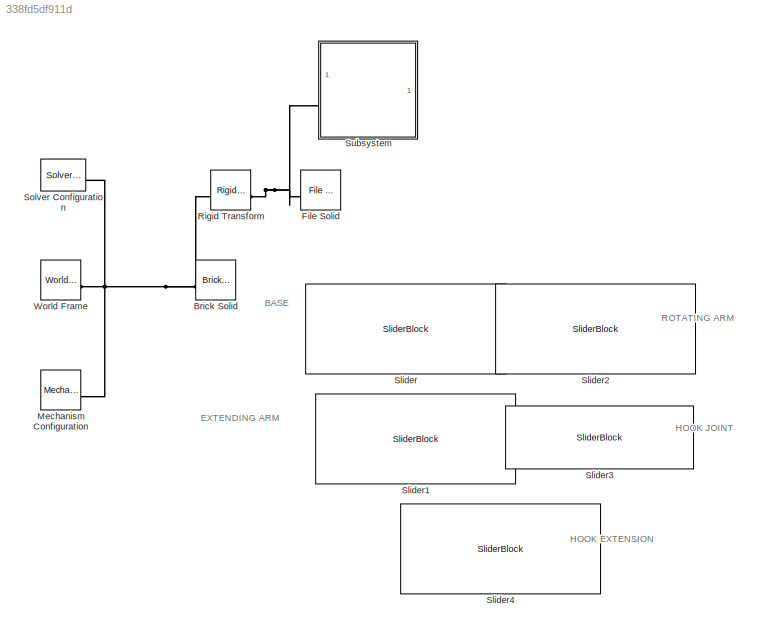
MODEL slx_338fd5df911d
KIND model
CONFIG AbsTol = auto
CONFIG EnableMultiTasking = off
CONFIG FixedStep = auto
CONFIG MaxStep = auto
CONFIG MinStep = auto
CONFIG RelTol = 1e-3
CONFIG SampleTimeConstraint = Unconstrained
CONFIG SolverName = VariableStepAuto
CONFIG StartTime = 0.0
CONFIG StopTime = inf
BLOCK [Reference] Brick Solid  REF=sm_lib/Body Elements/Brick Solid
  SourceBlock = sm_lib/Body Elements/Brick Solid
  SourceType = Brick Solid
BLOCK [Reference] File Solid  REF=sm_lib/Body Elements/File Solid
  SourceBlock = sm_lib/Body Elements/File Solid
  SourceType = File Solid
BLOCK [Reference] Mechanism Configuration  REF=sm_lib/Utilities/Mechanism
Configuration
  SourceBlock = sm_lib/Utilities/Mechanism\nConfiguration
  SourceType = Mechanism\nConfiguration
BLOCK [Reference] Rigid Transform  REF=sm_lib/Frames and
Transforms/Rigid
Transform
  SourceBlock = sm_lib/Frames and\nTransforms/Rigid\nTransform
  SourceType = Rigid\nTransform
BLOCK [SliderBlock] Slider
  ScaleMax = 3
  ScaleMin = -3
BLOCK [SliderBlock] Slider1
  ScaleMax = 0.21
BLOCK [SliderBlock] Slider2
  ScaleMax = 0.6
  ScaleMin = -0.6
BLOCK [SliderBlock] Slider3
  ScaleMax = 2.3
  ScaleMin = -0.65
BLOCK [SliderBlock] Slider4
  ScaleMax = 0.045
BLOCK [Reference] Solver Configuration  REF=nesl_utility/Solver
Configuration
  SourceBlock = nesl_utility/Solver\nConfiguration
  SourceType = Solver\nConfiguration
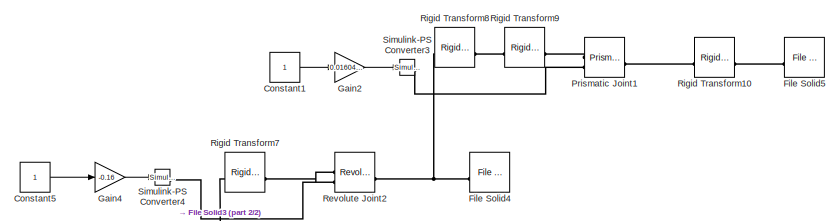
[diagram: Subsystem - part 1/2, top right region]
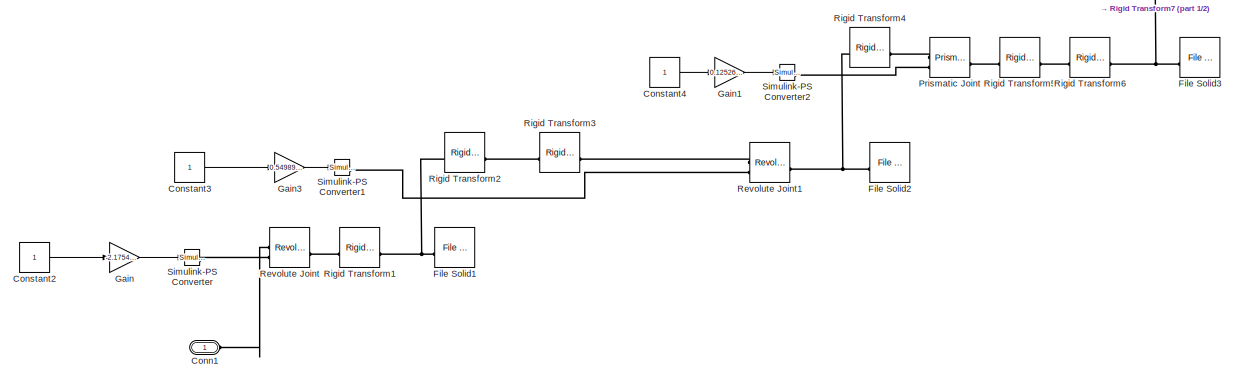
[diagram: Subsystem - part 2/2, bottom center region]
BLOCK [SubSystem] Subsystem
BLOCK [PMIOPort] Subsystem/Conn1
  Side = Left
BLOCK [Constant] Subsystem/Constant1
BLOCK [Constant] Subsystem/Constant2
BLOCK [Constant] Subsystem/Constant3
BLOCK [Constant] Subsystem/Constant4
BLOCK [Constant] Subsystem/Constant5
BLOCK [Reference] Subsystem/File Solid1  REF=sm_lib/Body Elements/File Solid
  SourceBlock = sm_lib/Body Elements/File Solid
  SourceType = File Solid
BLOCK [Reference] Subsystem/File Solid2  REF=sm_lib/Body Elements/File Solid
  SourceBlock = sm_lib/Body Elements/File Solid
  SourceType = File Solid
BLOCK [Reference] Subsystem/File Solid3  REF=sm_lib/Body Elements/File Solid
  SourceBlock = sm_lib/Body Elements/File Solid
  SourceType = File Solid
BLOCK [Reference] Subsystem/File Solid4  REF=sm_lib/Body Elements/File Solid
  SourceBlock = sm_lib/Body Elements/File Solid
  SourceType = File Solid
BLOCK [Reference] Subsystem/File Solid5  REF=sm_lib/Body Elements/File Solid
  SourceBlock = sm_lib/Body Elements/File Solid
  SourceType = File Solid
BLOCK [Gain] Subsystem/Gain
  Gain = -2.175438596491228
BLOCK [Gain] Subsystem/Gain1
  Gain = 0.1252631578947368
BLOCK [Gain] Subsystem/Gain2
  Gain = 0.01604037942737795
BLOCK [Gain] Subsystem/Gain3
  Gain = 0.5498945592576973
BLOCK [Gain] Subsystem/Gain4
  Gain = -0.16
BLOCK [Reference] Subsystem/Prismatic Joint  REF=sm_lib/Joints/Prismatic
Joint
  SourceBlock = sm_lib/Joints/Prismatic\nJoint
  SourceType = Prismatic\nJoint
BLOCK [Reference] Subsystem/Prismatic Joint1  REF=sm_lib/Joints/Prismatic
Joint
  SourceBlock = sm_lib/Joints/Prismatic\nJoint
  SourceType = Prismatic\nJoint
BLOCK [Reference] Subsystem/Revolute Joint  REF=sm_lib/Joints/Revolute Joint
  SourceBlock = sm_lib/Joints/Revolute Joint
  SourceType = Revolute Joint
BLOCK [Reference] Subsystem/Revolute Joint1  REF=sm_lib/Joints/Revolute Joint
  SourceBlock = sm_lib/Joints/Revolute Joint
  SourceType = Revolute Joint
BLOCK [Reference] Subsystem/Revolute Joint2  REF=sm_lib/Joints/Revolute Joint
  SourceBlock = sm_lib/Joints/Revolute Joint
  SourceType = Revolute Joint
BLOCK [Reference] Subsystem/Rigid Transform1  REF=sm_lib/Frames and
Transforms/Rigid
Transform
  SourceBlock = sm_lib/Frames and\nTransforms/Rigid\nTransform
  SourceType = Rigid\nTransform
BLOCK [Reference] Subsystem/Rigid Transform10  REF=sm_lib/Frames and
Transforms/Rigid
Transform
  SourceBlock = sm_lib/Frames and\nTransforms/Rigid\nTransform
  SourceType = Rigid\nTransform
BLOCK [Reference] Subsystem/Rigid Transform2  REF=sm_lib/Frames and
Transforms/Rigid
Transform
  SourceBlock = sm_lib/Frames and\nTransforms/Rigid\nTransform
  SourceType = Rigid\nTransform
BLOCK [Reference] Subsystem/Rigid Transform3  REF=sm_lib/Frames and
Transforms/Rigid
Transform
  SourceBlock = sm_lib/Frames and\nTransforms/Rigid\nTransform
  SourceType = Rigid\nTransform
BLOCK [Reference] Subsystem/Rigid Transform4  REF=sm_lib/Frames and
Transforms/Rigid
Transform
  SourceBlock = sm_lib/Frames and\nTransforms/Rigid\nTransform
  SourceType = Rigid\nTransform
BLOCK [Reference] Subsystem/Rigid Transform5  REF=sm_lib/Frames and
Transforms/Rigid
Transform
  SourceBlock = sm_lib/Frames and\nTransforms/Rigid\nTransform
  SourceType = Rigid\nTransform
BLOCK [Reference] Subsystem/Rigid Transform6  REF=sm_lib/Frames and
Transforms/Rigid
Transform
  SourceBlock = sm_lib/Frames and\nTransforms/Rigid\nTransform
  SourceType = Rigid\nTransform
BLOCK [Reference] Subsystem/Rigid Transform7  REF=sm_lib/Frames and
Transforms/Rigid
Transform
  SourceBlock = sm_lib/Frames and\nTransforms/Rigid\nTransform
  SourceType = Rigid\nTransform
BLOCK [Reference] Subsystem/Rigid Transform8  REF=sm_lib/Frames and
Transforms/Rigid
Transform
  SourceBlock = sm_lib/Frames and\nTransforms/Rigid\nTransform
  SourceType = Rigid\nTransform
BLOCK [Reference] Subsystem/Rigid Transform9  REF=sm_lib/Frames and
Transforms/Rigid
Transform
  SourceBlock = sm_lib/Frames and\nTransforms/Rigid\nTransform
  SourceType = Rigid\nTransform
BLOCK [Reference] Subsystem/Simulink-PS Converter  REF=nesl_utility/Simulink-PS
Converter
  SourceBlock = nesl_utility/Simulink-PS\nConverter
  SourceType = Simulink-PS\nConverter
BLOCK [Reference] Subsystem/Simulink-PS Converter1  REF=nesl_utility/Simulink-PS
Converter
  SourceBlock = nesl_utility/Simulink-PS\nConverter
  SourceType = Simulink-PS\nConverter
BLOCK [Reference] Subsystem/Simulink-PS Converter2  REF=nesl_utility/Simulink-PS
Converter
  SourceBlock = nesl_utility/Simulink-PS\nConverter
  SourceType = Simulink-PS\nConverter
BLOCK [Reference] Subsystem/Simulink-PS Converter3  REF=nesl_utility/Simulink-PS
Converter
  SourceBlock = nesl_utility/Simulink-PS\nConverter
  SourceType = Simulink-PS\nConverter
BLOCK [Reference] Subsystem/Simulink-PS Converter4  REF=nesl_utility/Simulink-PS
Converter
  SourceBlock = nesl_utility/Simulink-PS\nConverter
  SourceType = Simulink-PS\nConverter
BLOCK [Reference] World Frame  REF=sm_lib/Frames and
Transforms/World Frame
  SourceBlock = sm_lib/Frames and\nTransforms/World Frame
  SourceType = World Frame
ANNOTATION (root): BASE
ANNOTATION (root): EXTENDING ARM
ANNOTATION (root): HOOK EXTENSION
ANNOTATION (root): HOOK JOINT
ANNOTATION (root): ROTATING ARM
LINE Subsystem/Constant1:1 -> Subsystem/Gain2:1
LINE Subsystem/Constant2:1 -> Subsystem/Gain:1
LINE Subsystem/Constant3:1 -> Subsystem/Gain3:1
LINE Subsystem/Constant4:1 -> Subsystem/Gain1:1
LINE Subsystem/Constant5:1 -> Subsystem/Gain4:1
LINE Subsystem/Gain1:1 -> Subsystem/Simulink-PS Converter2:1
LINE Subsystem/Gain2:1 -> Subsystem/Simulink-PS Converter3:1
LINE Subsystem/Gain3:1 -> Subsystem/Simulink-PS Converter1:1
LINE Subsystem/Gain4:1 -> Subsystem/Simulink-PS Converter4:1
LINE Subsystem/Gain:1 -> Subsystem/Simulink-PS Converter:1
PNET net1: Brick Solid:RConn1 -- Mechanism Configuration:RConn1 -- Rigid Transform:LConn1 -- Solver Configuration:RConn1 -- World Frame:RConn1
PNET net2: File Solid:RConn1 -- Rigid Transform:RConn1 -- Subsystem:LConn1
PLINE Subsystem/Conn1:RConn1 -- Subsystem/Revolute Joint:LConn1
PNET net3: Subsystem/File Solid1:RConn1 -- Subsystem/Rigid Transform1:RConn1 -- Subsystem/Rigid Transform2:LConn1
PNET net4: Subsystem/File Solid2:RConn1 -- Subsystem/Revolute Joint1:RConn1 -- Subsystem/Rigid Transform4:LConn1
PNET net5: Subsystem/File Solid3:RConn1 -- Subsystem/Rigid Transform6:RConn1 -- Subsystem/Rigid Transform7:LConn1
PNET net6: Subsystem/File Solid4:RConn1 -- Subsystem/Revolute Joint2:RConn1 -- Subsystem/Rigid Transform8:LConn1
PLINE Subsystem/File Solid5:RConn1 -- Subsystem/Rigid Transform10:RConn1
PLINE Subsystem/Prismatic Joint1:LConn1 -- Subsystem/Rigid Transform9:RConn1
PLINE Subsystem/Prismatic Joint1:LConn2 -- Subsystem/Simulink-PS Converter3:RConn1
PLINE Subsystem/Prismatic Joint1:RConn1 -- Subsystem/Rigid Transform10:LConn1
PLINE Subsystem/Prismatic Joint:LConn1 -- Subsystem/Rigid Transform4:RConn1
PLINE Subsystem/Prismatic Joint:LConn2 -- Subsystem/Simulink-PS Converter2:RConn1
PLINE Subsystem/Prismatic Joint:RConn1 -- Subsystem/Rigid Transform5:LConn1
PLINE Subsystem/Revolute Joint1:LConn1 -- Subsystem/Rigid Transform3:RConn1
PLINE Subsystem/Revolute Joint1:LConn2 -- Subsystem/Simulink-PS Converter1:RConn1
PLINE Subsystem/Revolute Joint2:LConn1 -- Subsystem/Rigid Transform7:RConn1
PLINE Subsystem/Revolute Joint2:LConn2 -- Subsystem/Simulink-PS Converter4:RConn1
PLINE Subsystem/Revolute Joint:LConn2 -- Subsystem/Simulink-PS Converter:RConn1
PLINE Subsystem/Revolute Joint:RConn1 -- Subsystem/Rigid Transform1:LConn1
PLINE Subsystem/Rigid Transform2:RConn1 -- Subsystem/Rigid Transform3:LConn1
PLINE Subsystem/Rigid Transform5:RConn1 -- Subsystem/Rigid Transform6:LConn1
PLINE Subsystem/Rigid Transform8:RConn1 -- Subsystem/Rigid Transform9:LConn1
note: PNET lines group multi-terminal physical nets as a canonical sorted terminal list (undirected conserving connections); 2-terminal nets keep the pairwise PLINE form
